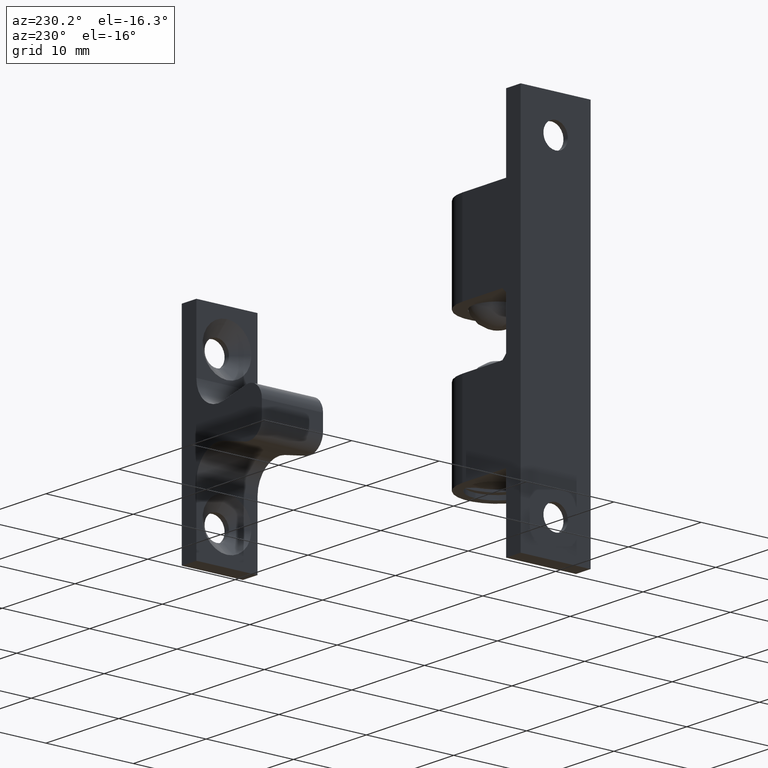
[diagram: clean part render]
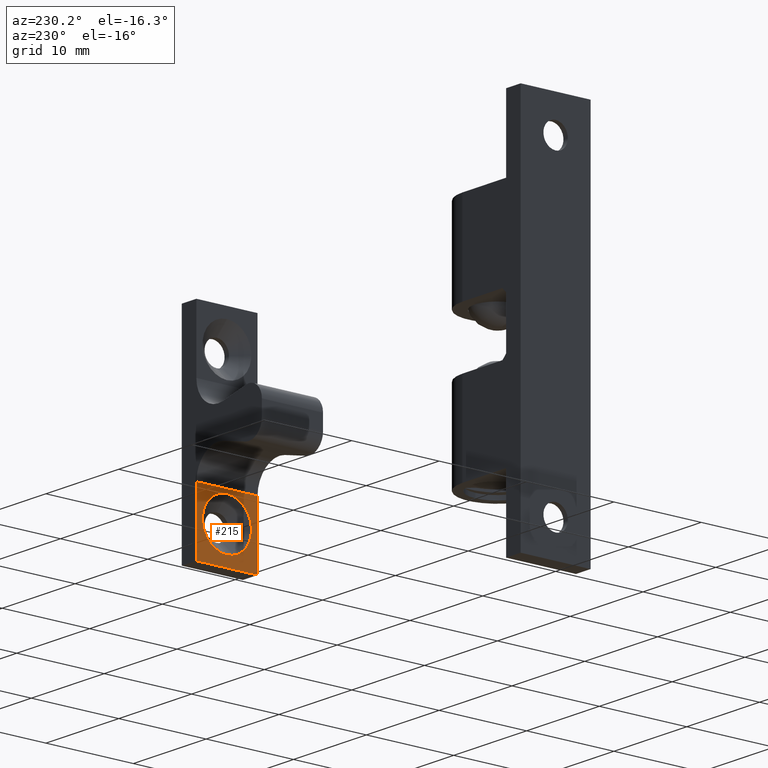
[diagram: same view with one face highlighted and labeled with its STEP entity id]
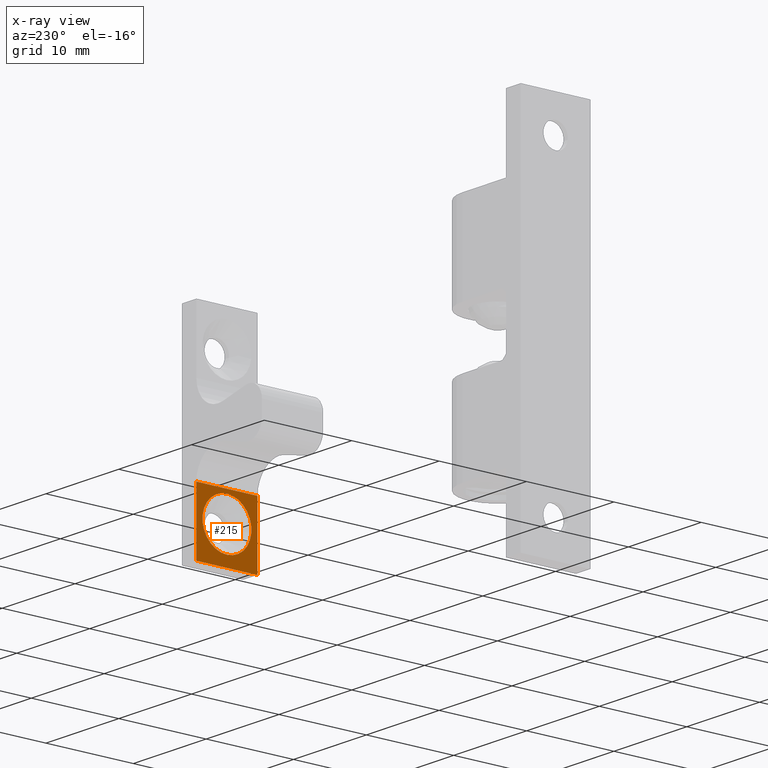
[diagram: x-ray of the same camera — body ghosted, the highlighted face saturated]
A machine part, auxiliary view. The second image highlights one B-rep face of the part: STEP entity #215.
The next image is the same camera in x-ray: the body ghosted, the highlighted face saturated — about 0% of this face is hidden behind the body in this view.
In plain terms, the highlighted planar face has unit normal (1, 0, 0).
Its self-contained STEP definition (entity closure, byte-faithful):
#215=ADVANCED_FACE('',(#387,#388),#386,.F.);
#386=PLANE('',#1048);
#387=FACE_OUTER_BOUND('',#1049,.T.);
#388=FACE_BOUND('',#1050,.T.);
#1045=CARTESIAN_POINT('',(4.51431752327E+01,-4.20000000000E+00,-4.02500000000E+00));
#1046=DIRECTION('',(1.00000000000E+00,0.00000000000E+00,0.00000000000E+00));
#1047=DIRECTION('',(0.00000000000E+00,0.00000000000E+00,-1.00000000000E+00));
#1048=AXIS2_PLACEMENT_3D('',#1045,#1046,#1047);
#1049=EDGE_LOOP('',(#1440,#1441,#1442,#1443));
#1050=EDGE_LOOP('',(#1444,#1445));
#1440=ORIENTED_EDGE('',*,*,#1756,.T.);
#1441=ORIENTED_EDGE('',*,*,#1757,.F.);
#1442=ORIENTED_EDGE('',*,*,#1758,.F.);
#1443=ORIENTED_EDGE('',*,*,#1759,.T.);
#1444=ORIENTED_EDGE('',*,*,#1760,.T.);
#1445=ORIENTED_EDGE('',*,*,#1761,.T.);
#1756=EDGE_CURVE('',#2060,#2061,#2062,.T.);
#1757=EDGE_CURVE('',#2068,#2061,#2069,.T.);
#1758=EDGE_CURVE('',#2075,#2068,#2076,.T.);
#1759=EDGE_CURVE('',#2075,#2060,#2082,.T.);
#1760=EDGE_CURVE('',#2088,#2089,#2090,.T.);
#1761=EDGE_CURVE('',#2089,#2088,#2096,.T.);
#2060=VERTEX_POINT('',#3105);
#2061=VERTEX_POINT('',#3106);
#2062=LINE('',#3107,#3108);
#2068=VERTEX_POINT('',#3110);
#2069=LINE('',#3111,#3112);
#2075=VERTEX_POINT('',#3114);
#2076=LINE('',#3115,#3116);
#2082=LINE('',#3118,#3119);
#2088=VERTEX_POINT('',#3121);
#2089=VERTEX_POINT('',#3122);
#2090=CIRCLE('',#3126,2.80000000000E+00);
#2096=CIRCLE('',#3130,2.80000000000E+00);
#3105=CARTESIAN_POINT('',(4.51431752327E+01,3.50000000000E+00,-4.75000000000E+00));
#3106=CARTESIAN_POINT('',(4.51431752327E+01,3.50000000000E+00,-1.20000000000E+01));
#3107=CARTESIAN_POINT('',(4.51431752327E+01,3.50000000000E+00,-4.75000000000E+00));
#3108=VECTOR('',#3109,7.25000000000E+00);
#3109=DIRECTION('',(0.00000000000E+00,0.00000000000E+00,-1.00000000000E+00));
#3110=CARTESIAN_POINT('',(4.51431752327E+01,-3.50000000000E+00,-1.20000000000E+01));
#3111=CARTESIAN_POINT('',(4.51431752327E+01,-3.50000000000E+00,-1.20000000000E+01));
#3112=VECTOR('',#3113,7.00000000000E+00);
#3113=DIRECTION('',(0.00000000000E+00,1.00000000000E+00,0.00000000000E+00));
#3114=CARTESIAN_POINT('',(4.51431752327E+01,-3.50000000000E+00,-4.75000000000E+00));
#3115=CARTESIAN_POINT('',(4.51431752327E+01,-3.50000000000E+00,-4.75000000000E+00));
#3116=VECTOR('',#3117,7.25000000000E+00);
#3117=DIRECTION('',(0.00000000000E+00,0.00000000000E+00,-1.00000000000E+00));
#3118=CARTESIAN_POINT('',(4.51431752327E+01,-3.50000000000E+00,-4.75000000000E+00));
#3119=VECTOR('',#3120,7.00000000000E+00);
#3120=DIRECTION('',(0.00000000000E+00,1.00000000000E+00,0.00000000000E+00));
#3121=CARTESIAN_POINT('',(4.51431752327E+01,0.00000000000E+00,-1.08000000000E+01));
#3122=CARTESIAN_POINT('',(4.51431752327E+01,1.48029736617E-16,-5.20000000000E+00));
#3123=CARTESIAN_POINT('',(4.51431752327E+01,0.00000000000E+00,-8.00000000000E+00));
#3124=DIRECTION('',(1.00000000000E+00,0.00000000000E+00,0.00000000000E+00));
#3125=DIRECTION('',(0.00000000000E+00,-1.22460635382E-16,-1.00000000000E+00));
#3126=AXIS2_PLACEMENT_3D('',#3123,#3124,#3125);
#3127=CARTESIAN_POINT('',(4.51431752327E+01,0.00000000000E+00,-8.00000000000E+00));
#3128=DIRECTION('',(1.00000000000E+00,0.00000000000E+00,0.00000000000E+00));
#3129=DIRECTION('',(0.00000000000E+00,-1.22460635382E-16,-1.00000000000E+00));
#3130=AXIS2_PLACEMENT_3D('',#3127,#3128,#3129);